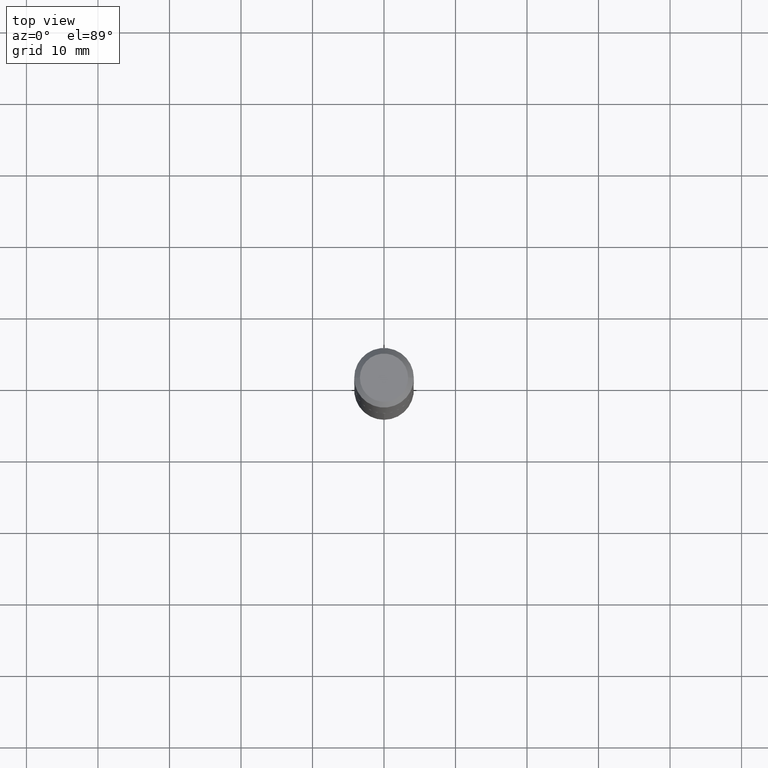
[diagram: clean part render]
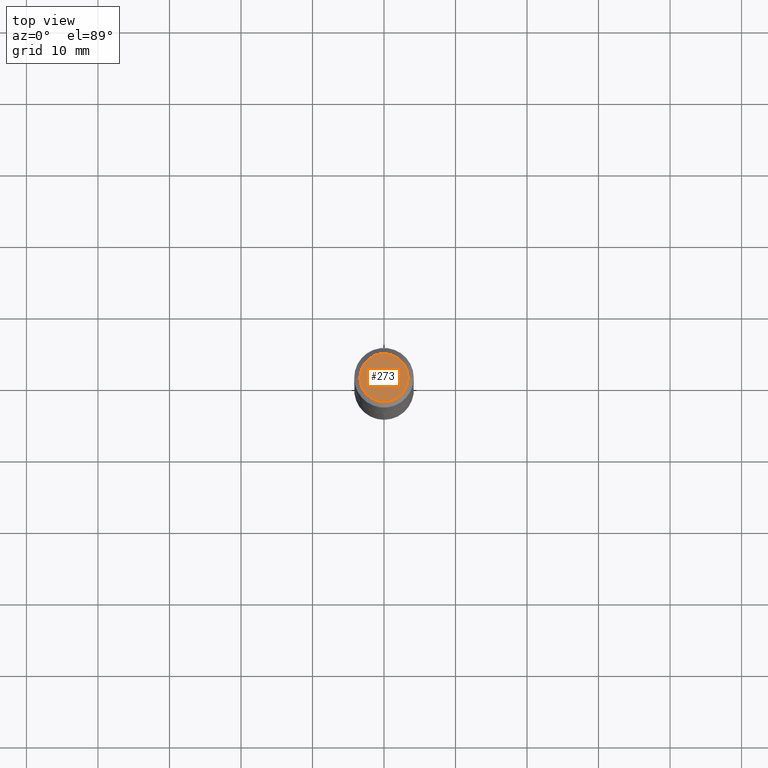
[diagram: same view with one face highlighted and labeled with its STEP entity id]
A machine part, top view. The second image highlights one B-rep face of the part: STEP entity #273.
In plain terms, the highlighted planar face has unit normal (0, -0, -1).
Its self-contained STEP definition (entity closure, byte-faithful):
#44 = CIRCLE ( 'NONE', #188, 0.1327999999999999736 ) ;
#50 = DIRECTION ( 'NONE',  ( 1.000000000000000000, -6.982962677686266711E-15, 4.876166016891695081E-29 ) ) ;
#57 = DIRECTION ( 'NONE',  ( 1.000000000000000000, -6.982962677686266711E-15, 4.876166016891695081E-29 ) ) ;
#59 = CARTESIAN_POINT ( 'NONE',  ( -7.636830642068754754E-48, 1.090337018703724380E-33, 3.122849337825739237E-19 ) ) ;
#115 = VERTEX_POINT ( 'NONE', #211 ) ;
#127 = FACE_OUTER_BOUND ( 'NONE', #138, .T. ) ;
#138 = EDGE_LOOP ( 'NONE', ( #347, #180 ) ) ;
#177 = AXIS2_PLACEMENT_3D ( 'NONE', #221, #335, #186 ) ;
#180 = ORIENTED_EDGE ( 'NONE', *, *, #389, .T. ) ;
#186 = DIRECTION ( 'NONE',  ( -1.000000000000000000, 6.982962677686265922E-15, -4.876176775795935793E-29 ) ) ;
#188 = AXIS2_PLACEMENT_3D ( 'NONE', #345, #315, #57 ) ;
#211 = CARTESIAN_POINT ( 'NONE',  ( -0.1327999999999999736, 9.818918395161595893E-16, 3.122849337758981209E-19 ) ) ;
#221 = CARTESIAN_POINT ( 'NONE',  ( -3.818415321034377377E-48, 5.451685093518621898E-34, 1.561424668912869619E-19 ) ) ;
#223 = VERTEX_POINT ( 'NONE', #229 ) ;
#229 = CARTESIAN_POINT ( 'NONE',  ( 0.1327999999999999736, -1.072823811238664119E-15, 3.122849337895672643E-19 ) ) ;
#249 = PLANE ( 'NONE',  #177 ) ;
#273 = ADVANCED_FACE ( 'NONE', ( #127 ), #249, .F. ) ;
#287 = AXIS2_PLACEMENT_3D ( 'NONE', #59, #374, #50 ) ;
#315 = DIRECTION ( 'NONE',  ( -2.445468806185136597E-29, 3.491481338843145583E-15, 1.000000000000000000 ) ) ;
#331 = CIRCLE ( 'NONE', #287, 0.1327999999999999736 ) ;
#335 = DIRECTION ( 'NONE',  ( 2.438088387897960049E-29, -3.491481338843145188E-15, -1.000000000000000000 ) ) ;
#345 = CARTESIAN_POINT ( 'NONE',  ( -7.636830642068754754E-48, 1.090337018703724380E-33, 3.122849337825739237E-19 ) ) ;
#347 = ORIENTED_EDGE ( 'NONE', *, *, #351, .T. ) ;
#351 = EDGE_CURVE ( 'NONE', #115, #223, #331, .T. ) ;
#374 = DIRECTION ( 'NONE',  ( -2.445468806185136597E-29, 3.491481338843145583E-15, 1.000000000000000000 ) ) ;
#389 = EDGE_CURVE ( 'NONE', #223, #115, #44, .T. ) ;